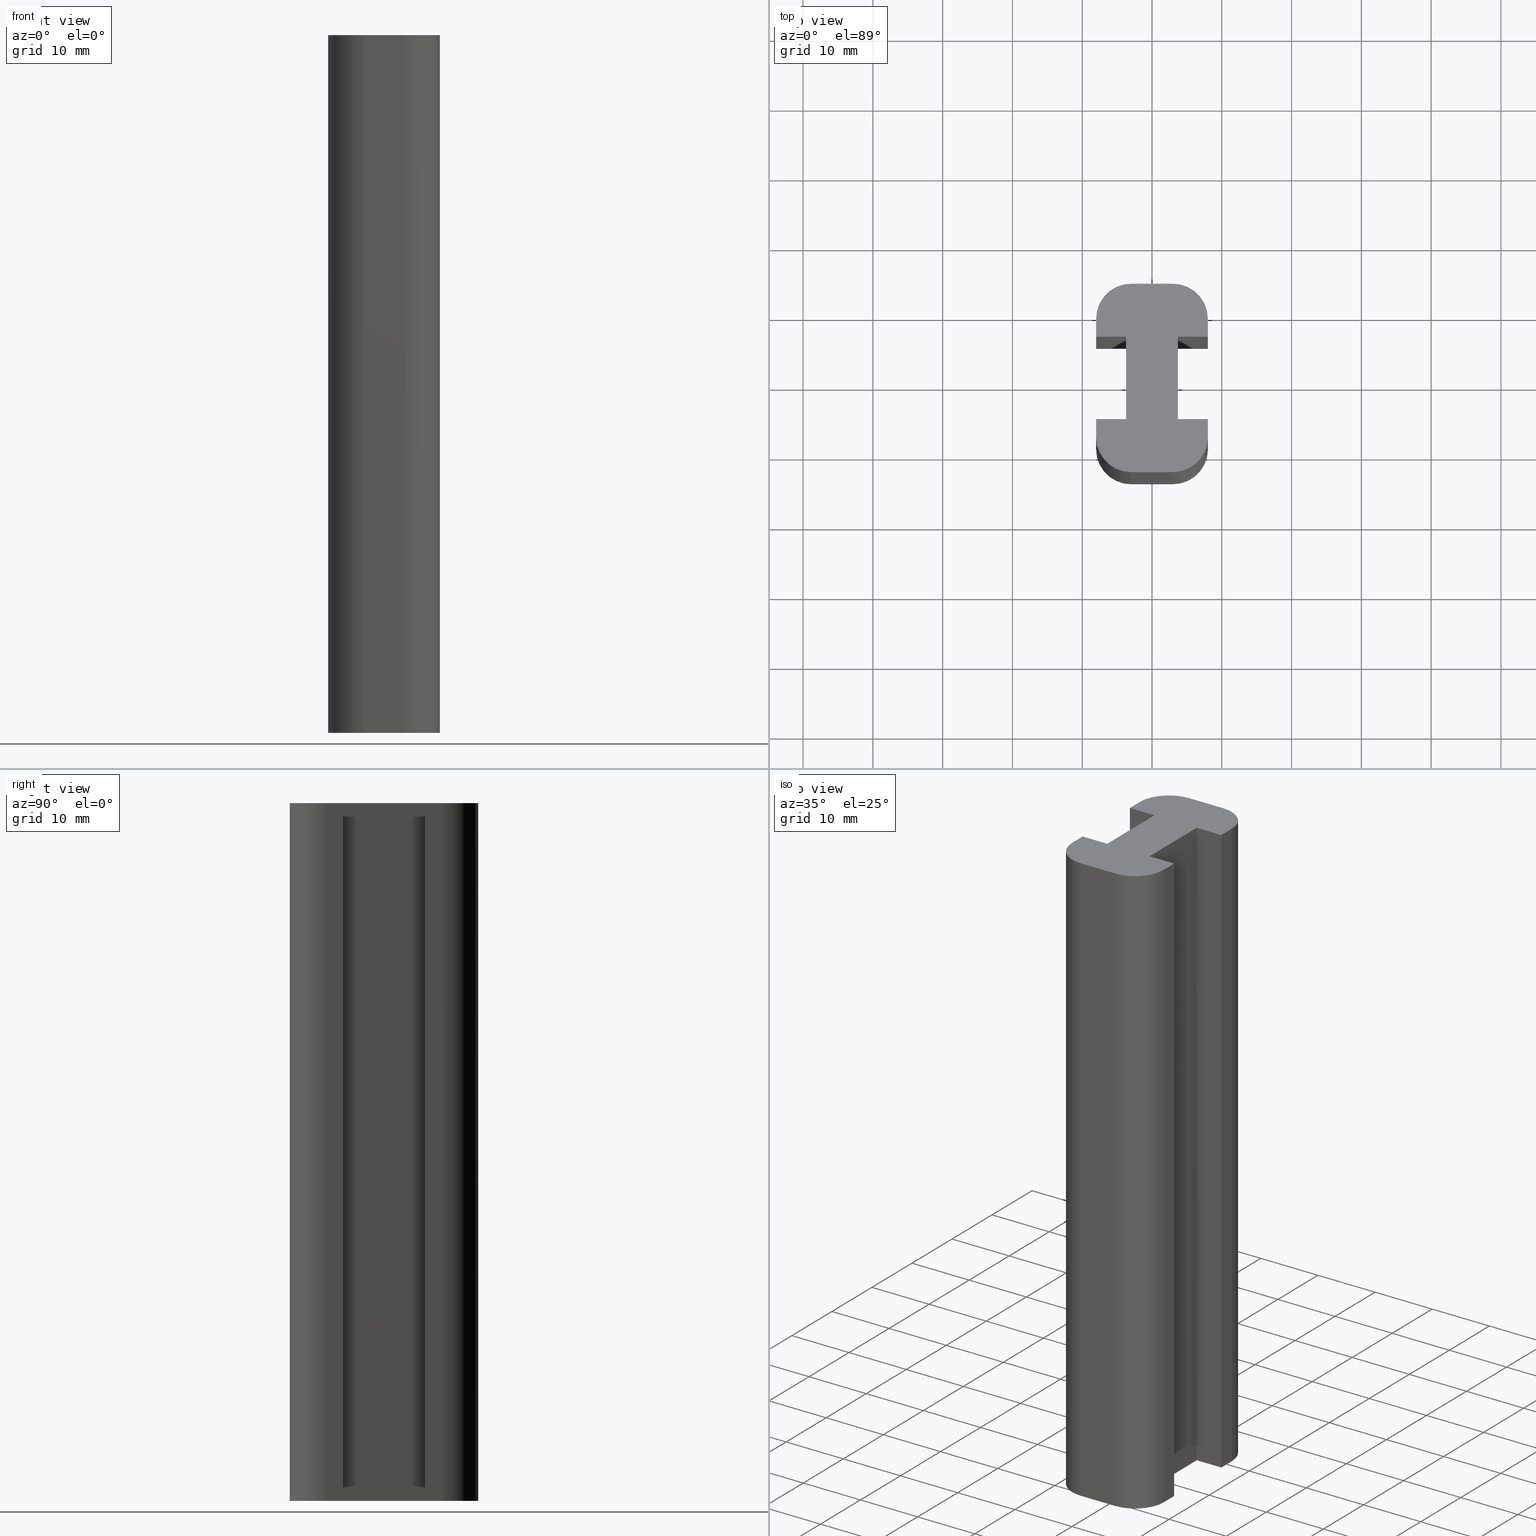
[diagram: canonical four-view strip — front | top / right | iso, engineering-drawing reading convention]
A machine part, canonical four-view strip (front | top / right | iso — engineering-drawing reading convention). The complete STEP part file that produces these views, byte-faithful:
ISO-10303-21;
HEADER;
/* Generated by software containing ST-Developer
 * from STEP Tools, Inc. (www.steptools.com) 
 */

FILE_DESCRIPTION(
/* description */ (''),
/* implementation_level */ '2;1');

FILE_NAME(
/* name */ 'Z:\\Nuovi render per accessori\\APRPZ0000017.stp',
/* time_stamp */ '2017-08-03T14:38:28+02:00',
/* author */ ('fzagni'),
/* organization */ (''),
/* preprocessor_version */ 'ST-DEVELOPER v16.1',
/* originating_system */ 'Autodesk Inventor 2016',
/* authorisation */ '');

FILE_SCHEMA (('AUTOMOTIVE_DESIGN { 1 0 10303 214 3 1 1 }'));
ENDSEC;

DATA;
#10=MECHANICAL_DESIGN_GEOMETRIC_PRESENTATION_REPRESENTATION('',(#13),#575);
#11=SHAPE_REPRESENTATION_RELATIONSHIP('SRR','None',#584,#12);
#12=ADVANCED_BREP_SHAPE_REPRESENTATION('',(#14),#574);
#13=STYLED_ITEM('',(#593),#14);
#14=MANIFOLD_SOLID_BREP('Solido1',#351);
#15=PLANE('',#356);
#16=PLANE('',#357);
#17=PLANE('',#358);
#18=PLANE('',#359);
#19=PLANE('',#360);
#20=PLANE('',#364);
#21=PLANE('',#368);
#22=PLANE('',#369);
#23=PLANE('',#370);
#24=PLANE('',#371);
#25=PLANE('',#372);
#26=PLANE('',#376);
#27=PLANE('',#377);
#28=PLANE('',#378);
#29=FACE_OUTER_BOUND('',#47,.T.);
#30=FACE_OUTER_BOUND('',#48,.T.);
#31=FACE_OUTER_BOUND('',#49,.T.);
#32=FACE_OUTER_BOUND('',#50,.T.);
#33=FACE_OUTER_BOUND('',#51,.T.);
#34=FACE_OUTER_BOUND('',#52,.T.);
#35=FACE_OUTER_BOUND('',#53,.T.);
#36=FACE_OUTER_BOUND('',#54,.T.);
#37=FACE_OUTER_BOUND('',#55,.T.);
#38=FACE_OUTER_BOUND('',#56,.T.);
#39=FACE_OUTER_BOUND('',#57,.T.);
#40=FACE_OUTER_BOUND('',#58,.T.);
#41=FACE_OUTER_BOUND('',#59,.T.);
#42=FACE_OUTER_BOUND('',#60,.T.);
#43=FACE_OUTER_BOUND('',#61,.T.);
#44=FACE_OUTER_BOUND('',#62,.T.);
#45=FACE_OUTER_BOUND('',#63,.T.);
#46=FACE_OUTER_BOUND('',#64,.T.);
#47=EDGE_LOOP('',(#233,#234,#235,#236));
#48=EDGE_LOOP('',(#237,#238,#239,#240));
#49=EDGE_LOOP('',(#241,#242,#243,#244));
#50=EDGE_LOOP('',(#245,#246,#247,#248));
#51=EDGE_LOOP('',(#249,#250,#251,#252));
#52=EDGE_LOOP('',(#253,#254,#255,#256));
#53=EDGE_LOOP('',(#257,#258,#259,#260));
#54=EDGE_LOOP('',(#261,#262,#263,#264));
#55=EDGE_LOOP('',(#265,#266,#267,#268));
#56=EDGE_LOOP('',(#269,#270,#271,#272));
#57=EDGE_LOOP('',(#273,#274,#275,#276));
#58=EDGE_LOOP('',(#277,#278,#279,#280));
#59=EDGE_LOOP('',(#281,#282,#283,#284));
#60=EDGE_LOOP('',(#285,#286,#287,#288));
#61=EDGE_LOOP('',(#289,#290,#291,#292));
#62=EDGE_LOOP('',(#293,#294,#295,#296));
#63=EDGE_LOOP('',(#297,#298,#299,#300,#301,#302,#303,#304,#305,#306,#307,
#308,#309,#310,#311,#312));
#64=EDGE_LOOP('',(#313,#314,#315,#316,#317,#318,#319,#320,#321,#322,#323,
#324,#325,#326,#327,#328));
#65=LINE('',#479,#105);
#66=LINE('',#482,#106);
#67=LINE('',#485,#107);
#68=LINE('',#487,#108);
#69=LINE('',#488,#109);
#70=LINE('',#491,#110);
#71=LINE('',#493,#111);
#72=LINE('',#494,#112);
#73=LINE('',#497,#113);
#74=LINE('',#499,#114);
#75=LINE('',#500,#115);
#76=LINE('',#503,#116);
#77=LINE('',#505,#117);
#78=LINE('',#506,#118);
#79=LINE('',#509,#119);
#80=LINE('',#511,#120);
#81=LINE('',#512,#121);
#82=LINE('',#518,#122);
#83=LINE('',#521,#123);
#84=LINE('',#523,#124);
#85=LINE('',#524,#125);
#86=LINE('',#530,#126);
#87=LINE('',#533,#127);
#88=LINE('',#535,#128);
#89=LINE('',#536,#129);
#90=LINE('',#539,#130);
#91=LINE('',#541,#131);
#92=LINE('',#542,#132);
#93=LINE('',#545,#133);
#94=LINE('',#547,#134);
#95=LINE('',#548,#135);
#96=LINE('',#551,#136);
#97=LINE('',#553,#137);
#98=LINE('',#554,#138);
#99=LINE('',#557,#139);
#100=LINE('',#559,#140);
#101=LINE('',#560,#141);
#102=LINE('',#566,#142);
#103=LINE('',#568,#143);
#104=LINE('',#569,#144);
#105=VECTOR('',#385,100.);
#106=VECTOR('',#388,100.);
#107=VECTOR('',#391,2.6);
#108=VECTOR('',#392,2.6);
#109=VECTOR('',#393,100.);
#110=VECTOR('',#396,4.3);
#111=VECTOR('',#397,4.3);
#112=VECTOR('',#398,100.);
#113=VECTOR('',#401,11.8);
#114=VECTOR('',#402,11.8);
#115=VECTOR('',#403,100.);
#116=VECTOR('',#406,4.3);
#117=VECTOR('',#407,4.3);
#118=VECTOR('',#408,100.);
#119=VECTOR('',#411,2.6);
#120=VECTOR('',#412,2.6);
#121=VECTOR('',#413,100.);
#122=VECTOR('',#420,100.);
#123=VECTOR('',#423,6.);
#124=VECTOR('',#424,6.);
#125=VECTOR('',#425,100.);
#126=VECTOR('',#432,100.);
#127=VECTOR('',#435,2.6);
#128=VECTOR('',#436,2.6);
#129=VECTOR('',#437,100.);
#130=VECTOR('',#440,4.3);
#131=VECTOR('',#441,4.3);
#132=VECTOR('',#442,100.);
#133=VECTOR('',#445,11.8);
#134=VECTOR('',#446,11.8);
#135=VECTOR('',#447,100.);
#136=VECTOR('',#450,4.3);
#137=VECTOR('',#451,4.3);
#138=VECTOR('',#452,100.);
#139=VECTOR('',#455,2.6);
#140=VECTOR('',#456,2.6);
#141=VECTOR('',#457,100.);
#142=VECTOR('',#464,100.);
#143=VECTOR('',#467,6.);
#144=VECTOR('',#468,6.);
#145=CIRCLE('',#354,5.);
#146=CIRCLE('',#355,5.);
#147=CIRCLE('',#362,5.);
#148=CIRCLE('',#363,5.);
#149=CIRCLE('',#366,5.);
#150=CIRCLE('',#367,5.);
#151=CIRCLE('',#374,5.);
#152=CIRCLE('',#375,5.);
#153=VERTEX_POINT('',#475);
#154=VERTEX_POINT('',#476);
#155=VERTEX_POINT('',#478);
#156=VERTEX_POINT('',#480);
#157=VERTEX_POINT('',#484);
#158=VERTEX_POINT('',#486);
#159=VERTEX_POINT('',#490);
#160=VERTEX_POINT('',#492);
#161=VERTEX_POINT('',#496);
#162=VERTEX_POINT('',#498);
#163=VERTEX_POINT('',#502);
#164=VERTEX_POINT('',#504);
#165=VERTEX_POINT('',#508);
#166=VERTEX_POINT('',#510);
#167=VERTEX_POINT('',#514);
#168=VERTEX_POINT('',#516);
#169=VERTEX_POINT('',#520);
#170=VERTEX_POINT('',#522);
#171=VERTEX_POINT('',#526);
#172=VERTEX_POINT('',#528);
#173=VERTEX_POINT('',#532);
#174=VERTEX_POINT('',#534);
#175=VERTEX_POINT('',#538);
#176=VERTEX_POINT('',#540);
#177=VERTEX_POINT('',#544);
#178=VERTEX_POINT('',#546);
#179=VERTEX_POINT('',#550);
#180=VERTEX_POINT('',#552);
#181=VERTEX_POINT('',#556);
#182=VERTEX_POINT('',#558);
#183=VERTEX_POINT('',#562);
#184=VERTEX_POINT('',#564);
#185=EDGE_CURVE('',#153,#154,#145,.T.);
#186=EDGE_CURVE('',#153,#155,#65,.T.);
#187=EDGE_CURVE('',#156,#155,#146,.T.);
#188=EDGE_CURVE('',#154,#156,#66,.T.);
#189=EDGE_CURVE('',#154,#157,#67,.T.);
#190=EDGE_CURVE('',#158,#156,#68,.T.);
#191=EDGE_CURVE('',#157,#158,#69,.T.);
#192=EDGE_CURVE('',#157,#159,#70,.T.);
#193=EDGE_CURVE('',#160,#158,#71,.T.);
#194=EDGE_CURVE('',#159,#160,#72,.T.);
#195=EDGE_CURVE('',#159,#161,#73,.T.);
#196=EDGE_CURVE('',#162,#160,#74,.T.);
#197=EDGE_CURVE('',#161,#162,#75,.T.);
#198=EDGE_CURVE('',#161,#163,#76,.T.);
#199=EDGE_CURVE('',#164,#162,#77,.T.);
#200=EDGE_CURVE('',#163,#164,#78,.T.);
#201=EDGE_CURVE('',#163,#165,#79,.T.);
#202=EDGE_CURVE('',#166,#164,#80,.T.);
#203=EDGE_CURVE('',#165,#166,#81,.T.);
#204=EDGE_CURVE('',#165,#167,#147,.T.);
#205=EDGE_CURVE('',#168,#166,#148,.T.);
#206=EDGE_CURVE('',#167,#168,#82,.T.);
#207=EDGE_CURVE('',#167,#169,#83,.T.);
#208=EDGE_CURVE('',#170,#168,#84,.T.);
#209=EDGE_CURVE('',#169,#170,#85,.T.);
#210=EDGE_CURVE('',#169,#171,#149,.T.);
#211=EDGE_CURVE('',#172,#170,#150,.T.);
#212=EDGE_CURVE('',#171,#172,#86,.T.);
#213=EDGE_CURVE('',#171,#173,#87,.T.);
#214=EDGE_CURVE('',#174,#172,#88,.T.);
#215=EDGE_CURVE('',#173,#174,#89,.T.);
#216=EDGE_CURVE('',#173,#175,#90,.T.);
#217=EDGE_CURVE('',#176,#174,#91,.T.);
#218=EDGE_CURVE('',#175,#176,#92,.T.);
#219=EDGE_CURVE('',#175,#177,#93,.T.);
#220=EDGE_CURVE('',#178,#176,#94,.T.);
#221=EDGE_CURVE('',#177,#178,#95,.T.);
#222=EDGE_CURVE('',#177,#179,#96,.T.);
#223=EDGE_CURVE('',#180,#178,#97,.T.);
#224=EDGE_CURVE('',#179,#180,#98,.T.);
#225=EDGE_CURVE('',#179,#181,#99,.T.);
#226=EDGE_CURVE('',#182,#180,#100,.T.);
#227=EDGE_CURVE('',#181,#182,#101,.T.);
#228=EDGE_CURVE('',#181,#183,#151,.T.);
#229=EDGE_CURVE('',#184,#182,#152,.T.);
#230=EDGE_CURVE('',#183,#184,#102,.T.);
#231=EDGE_CURVE('',#183,#153,#103,.T.);
#232=EDGE_CURVE('',#155,#184,#104,.T.);
#233=ORIENTED_EDGE('',*,*,#185,.F.);
#234=ORIENTED_EDGE('',*,*,#186,.T.);
#235=ORIENTED_EDGE('',*,*,#187,.F.);
#236=ORIENTED_EDGE('',*,*,#188,.F.);
#237=ORIENTED_EDGE('',*,*,#189,.F.);
#238=ORIENTED_EDGE('',*,*,#188,.T.);
#239=ORIENTED_EDGE('',*,*,#190,.F.);
#240=ORIENTED_EDGE('',*,*,#191,.F.);
#241=ORIENTED_EDGE('',*,*,#192,.F.);
#242=ORIENTED_EDGE('',*,*,#191,.T.);
#243=ORIENTED_EDGE('',*,*,#193,.F.);
#244=ORIENTED_EDGE('',*,*,#194,.F.);
#245=ORIENTED_EDGE('',*,*,#195,.F.);
#246=ORIENTED_EDGE('',*,*,#194,.T.);
#247=ORIENTED_EDGE('',*,*,#196,.F.);
#248=ORIENTED_EDGE('',*,*,#197,.F.);
#249=ORIENTED_EDGE('',*,*,#198,.F.);
#250=ORIENTED_EDGE('',*,*,#197,.T.);
#251=ORIENTED_EDGE('',*,*,#199,.F.);
#252=ORIENTED_EDGE('',*,*,#200,.F.);
#253=ORIENTED_EDGE('',*,*,#201,.F.);
#254=ORIENTED_EDGE('',*,*,#200,.T.);
#255=ORIENTED_EDGE('',*,*,#202,.F.);
#256=ORIENTED_EDGE('',*,*,#203,.F.);
#257=ORIENTED_EDGE('',*,*,#204,.F.);
#258=ORIENTED_EDGE('',*,*,#203,.T.);
#259=ORIENTED_EDGE('',*,*,#205,.F.);
#260=ORIENTED_EDGE('',*,*,#206,.F.);
#261=ORIENTED_EDGE('',*,*,#207,.F.);
#262=ORIENTED_EDGE('',*,*,#206,.T.);
#263=ORIENTED_EDGE('',*,*,#208,.F.);
#264=ORIENTED_EDGE('',*,*,#209,.F.);
#265=ORIENTED_EDGE('',*,*,#210,.F.);
#266=ORIENTED_EDGE('',*,*,#209,.T.);
#267=ORIENTED_EDGE('',*,*,#211,.F.);
#268=ORIENTED_EDGE('',*,*,#212,.F.);
#269=ORIENTED_EDGE('',*,*,#213,.F.);
#270=ORIENTED_EDGE('',*,*,#212,.T.);
#271=ORIENTED_EDGE('',*,*,#214,.F.);
#272=ORIENTED_EDGE('',*,*,#215,.F.);
#273=ORIENTED_EDGE('',*,*,#216,.F.);
#274=ORIENTED_EDGE('',*,*,#215,.T.);
#275=ORIENTED_EDGE('',*,*,#217,.F.);
#276=ORIENTED_EDGE('',*,*,#218,.F.);
#277=ORIENTED_EDGE('',*,*,#219,.F.);
#278=ORIENTED_EDGE('',*,*,#218,.T.);
#279=ORIENTED_EDGE('',*,*,#220,.F.);
#280=ORIENTED_EDGE('',*,*,#221,.F.);
#281=ORIENTED_EDGE('',*,*,#222,.F.);
#282=ORIENTED_EDGE('',*,*,#221,.T.);
#283=ORIENTED_EDGE('',*,*,#223,.F.);
#284=ORIENTED_EDGE('',*,*,#224,.F.);
#285=ORIENTED_EDGE('',*,*,#225,.F.);
#286=ORIENTED_EDGE('',*,*,#224,.T.);
#287=ORIENTED_EDGE('',*,*,#226,.F.);
#288=ORIENTED_EDGE('',*,*,#227,.F.);
#289=ORIENTED_EDGE('',*,*,#228,.F.);
#290=ORIENTED_EDGE('',*,*,#227,.T.);
#291=ORIENTED_EDGE('',*,*,#229,.F.);
#292=ORIENTED_EDGE('',*,*,#230,.F.);
#293=ORIENTED_EDGE('',*,*,#231,.F.);
#294=ORIENTED_EDGE('',*,*,#230,.T.);
#295=ORIENTED_EDGE('',*,*,#232,.F.);
#296=ORIENTED_EDGE('',*,*,#186,.F.);
#297=ORIENTED_EDGE('',*,*,#231,.T.);
#298=ORIENTED_EDGE('',*,*,#185,.T.);
#299=ORIENTED_EDGE('',*,*,#189,.T.);
#300=ORIENTED_EDGE('',*,*,#192,.T.);
#301=ORIENTED_EDGE('',*,*,#195,.T.);
#302=ORIENTED_EDGE('',*,*,#198,.T.);
#303=ORIENTED_EDGE('',*,*,#201,.T.);
#304=ORIENTED_EDGE('',*,*,#204,.T.);
#305=ORIENTED_EDGE('',*,*,#207,.T.);
#306=ORIENTED_EDGE('',*,*,#210,.T.);
#307=ORIENTED_EDGE('',*,*,#213,.T.);
#308=ORIENTED_EDGE('',*,*,#216,.T.);
#309=ORIENTED_EDGE('',*,*,#219,.T.);
#310=ORIENTED_EDGE('',*,*,#222,.T.);
#311=ORIENTED_EDGE('',*,*,#225,.T.);
#312=ORIENTED_EDGE('',*,*,#228,.T.);
#313=ORIENTED_EDGE('',*,*,#232,.T.);
#314=ORIENTED_EDGE('',*,*,#229,.T.);
#315=ORIENTED_EDGE('',*,*,#226,.T.);
#316=ORIENTED_EDGE('',*,*,#223,.T.);
#317=ORIENTED_EDGE('',*,*,#220,.T.);
#318=ORIENTED_EDGE('',*,*,#217,.T.);
#319=ORIENTED_EDGE('',*,*,#214,.T.);
#320=ORIENTED_EDGE('',*,*,#211,.T.);
#321=ORIENTED_EDGE('',*,*,#208,.T.);
#322=ORIENTED_EDGE('',*,*,#205,.T.);
#323=ORIENTED_EDGE('',*,*,#202,.T.);
#324=ORIENTED_EDGE('',*,*,#199,.T.);
#325=ORIENTED_EDGE('',*,*,#196,.T.);
#326=ORIENTED_EDGE('',*,*,#193,.T.);
#327=ORIENTED_EDGE('',*,*,#190,.T.);
#328=ORIENTED_EDGE('',*,*,#187,.T.);
#329=CYLINDRICAL_SURFACE('',#353,5.);
#330=CYLINDRICAL_SURFACE('',#361,5.);
#331=CYLINDRICAL_SURFACE('',#365,5.);
#332=CYLINDRICAL_SURFACE('',#373,5.);
#333=ADVANCED_FACE('',(#29),#329,.T.);
#334=ADVANCED_FACE('',(#30),#15,.T.);
#335=ADVANCED_FACE('',(#31),#16,.T.);
#336=ADVANCED_FACE('',(#32),#17,.T.);
#337=ADVANCED_FACE('',(#33),#18,.T.);
#338=ADVANCED_FACE('',(#34),#19,.T.);
#339=ADVANCED_FACE('',(#35),#330,.T.);
#340=ADVANCED_FACE('',(#36),#20,.T.);
#341=ADVANCED_FACE('',(#37),#331,.T.);
#342=ADVANCED_FACE('',(#38),#21,.T.);
#343=ADVANCED_FACE('',(#39),#22,.T.);
#344=ADVANCED_FACE('',(#40),#23,.T.);
#345=ADVANCED_FACE('',(#41),#24,.T.);
#346=ADVANCED_FACE('',(#42),#25,.T.);
#347=ADVANCED_FACE('',(#43),#332,.T.);
#348=ADVANCED_FACE('',(#44),#26,.T.);
#349=ADVANCED_FACE('',(#45),#27,.F.);
#350=ADVANCED_FACE('',(#46),#28,.T.);
#351=CLOSED_SHELL('',(#333,#334,#335,#336,#337,#338,#339,#340,#341,#342,
#343,#344,#345,#346,#347,#348,#349,#350));
#352=AXIS2_PLACEMENT_3D('placement',#473,#379,#380);
#353=AXIS2_PLACEMENT_3D('',#474,#381,#382);
#354=AXIS2_PLACEMENT_3D('',#477,#383,#384);
#355=AXIS2_PLACEMENT_3D('',#481,#386,#387);
#356=AXIS2_PLACEMENT_3D('',#483,#389,#390);
#357=AXIS2_PLACEMENT_3D('',#489,#394,#395);
#358=AXIS2_PLACEMENT_3D('',#495,#399,#400);
#359=AXIS2_PLACEMENT_3D('',#501,#404,#405);
#360=AXIS2_PLACEMENT_3D('',#507,#409,#410);
#361=AXIS2_PLACEMENT_3D('',#513,#414,#415);
#362=AXIS2_PLACEMENT_3D('',#515,#416,#417);
#363=AXIS2_PLACEMENT_3D('',#517,#418,#419);
#364=AXIS2_PLACEMENT_3D('',#519,#421,#422);
#365=AXIS2_PLACEMENT_3D('',#525,#426,#427);
#366=AXIS2_PLACEMENT_3D('',#527,#428,#429);
#367=AXIS2_PLACEMENT_3D('',#529,#430,#431);
#368=AXIS2_PLACEMENT_3D('',#531,#433,#434);
#369=AXIS2_PLACEMENT_3D('',#537,#438,#439);
#370=AXIS2_PLACEMENT_3D('',#543,#443,#444);
#371=AXIS2_PLACEMENT_3D('',#549,#448,#449);
#372=AXIS2_PLACEMENT_3D('',#555,#453,#454);
#373=AXIS2_PLACEMENT_3D('',#561,#458,#459);
#374=AXIS2_PLACEMENT_3D('',#563,#460,#461);
#375=AXIS2_PLACEMENT_3D('',#565,#462,#463);
#376=AXIS2_PLACEMENT_3D('',#567,#465,#466);
#377=AXIS2_PLACEMENT_3D('',#570,#469,#470);
#378=AXIS2_PLACEMENT_3D('',#571,#471,#472);
#379=DIRECTION('axis',(0.,0.,1.));
#380=DIRECTION('refdir',(1.,0.,0.));
#381=DIRECTION('center_axis',(0.,0.,1.));
#382=DIRECTION('ref_axis',(-1.,0.,0.));
#383=DIRECTION('center_axis',(0.,0.,-1.));
#384=DIRECTION('ref_axis',(-1.,0.,0.));
#385=DIRECTION('',(0.,0.,1.));
#386=DIRECTION('center_axis',(0.,0.,1.));
#387=DIRECTION('ref_axis',(-1.,0.,0.));
#388=DIRECTION('',(0.,0.,1.));
#389=DIRECTION('center_axis',(1.,0.,0.));
#390=DIRECTION('ref_axis',(0.,1.,0.));
#391=DIRECTION('',(0.,-1.,0.));
#392=DIRECTION('',(0.,1.,0.));
#393=DIRECTION('',(0.,0.,1.));
#394=DIRECTION('center_axis',(0.,-1.,0.));
#395=DIRECTION('ref_axis',(1.,0.,0.));
#396=DIRECTION('',(-1.,0.,0.));
#397=DIRECTION('',(1.,0.,0.));
#398=DIRECTION('',(0.,0.,1.));
#399=DIRECTION('center_axis',(1.,0.,0.));
#400=DIRECTION('ref_axis',(0.,1.,0.));
#401=DIRECTION('',(0.,-1.,0.));
#402=DIRECTION('',(0.,1.,0.));
#403=DIRECTION('',(0.,0.,1.));
#404=DIRECTION('center_axis',(0.,1.,0.));
#405=DIRECTION('ref_axis',(-1.,0.,0.));
#406=DIRECTION('',(1.,0.,0.));
#407=DIRECTION('',(-1.,0.,0.));
#408=DIRECTION('',(0.,0.,1.));
#409=DIRECTION('center_axis',(1.,0.,0.));
#410=DIRECTION('ref_axis',(0.,1.,0.));
#411=DIRECTION('',(0.,-1.,0.));
#412=DIRECTION('',(0.,1.,0.));
#413=DIRECTION('',(0.,0.,1.));
#414=DIRECTION('center_axis',(0.,0.,1.));
#415=DIRECTION('ref_axis',(0.,1.,0.));
#416=DIRECTION('center_axis',(0.,0.,-1.));
#417=DIRECTION('ref_axis',(0.,1.,0.));
#418=DIRECTION('center_axis',(0.,0.,1.));
#419=DIRECTION('ref_axis',(0.,1.,0.));
#420=DIRECTION('',(0.,0.,1.));
#421=DIRECTION('center_axis',(0.,-1.,0.));
#422=DIRECTION('ref_axis',(1.,0.,0.));
#423=DIRECTION('',(-1.,0.,0.));
#424=DIRECTION('',(1.,0.,0.));
#425=DIRECTION('',(0.,0.,1.));
#426=DIRECTION('center_axis',(0.,0.,1.));
#427=DIRECTION('ref_axis',(1.,0.,0.));
#428=DIRECTION('center_axis',(0.,0.,-1.));
#429=DIRECTION('ref_axis',(1.,0.,0.));
#430=DIRECTION('center_axis',(0.,0.,1.));
#431=DIRECTION('ref_axis',(1.,0.,0.));
#432=DIRECTION('',(0.,0.,1.));
#433=DIRECTION('center_axis',(-1.,0.,0.));
#434=DIRECTION('ref_axis',(0.,-1.,0.));
#435=DIRECTION('',(0.,1.,0.));
#436=DIRECTION('',(0.,-1.,0.));
#437=DIRECTION('',(0.,0.,1.));
#438=DIRECTION('center_axis',(0.,1.,0.));
#439=DIRECTION('ref_axis',(-1.,0.,0.));
#440=DIRECTION('',(1.,0.,0.));
#441=DIRECTION('',(-1.,0.,0.));
#442=DIRECTION('',(0.,0.,1.));
#443=DIRECTION('center_axis',(-1.,0.,0.));
#444=DIRECTION('ref_axis',(0.,-1.,0.));
#445=DIRECTION('',(0.,1.,0.));
#446=DIRECTION('',(0.,-1.,0.));
#447=DIRECTION('',(0.,0.,1.));
#448=DIRECTION('center_axis',(0.,-1.,0.));
#449=DIRECTION('ref_axis',(1.,0.,0.));
#450=DIRECTION('',(-1.,0.,0.));
#451=DIRECTION('',(1.,0.,0.));
#452=DIRECTION('',(0.,0.,1.));
#453=DIRECTION('center_axis',(-1.,0.,0.));
#454=DIRECTION('ref_axis',(0.,-1.,0.));
#455=DIRECTION('',(0.,1.,0.));
#456=DIRECTION('',(0.,-1.,0.));
#457=DIRECTION('',(0.,0.,1.));
#458=DIRECTION('center_axis',(0.,0.,1.));
#459=DIRECTION('ref_axis',(0.,-1.,0.));
#460=DIRECTION('center_axis',(0.,0.,-1.));
#461=DIRECTION('ref_axis',(0.,-1.,0.));
#462=DIRECTION('center_axis',(0.,0.,1.));
#463=DIRECTION('ref_axis',(0.,-1.,0.));
#464=DIRECTION('',(0.,0.,1.));
#465=DIRECTION('center_axis',(0.,1.,0.));
#466=DIRECTION('ref_axis',(-1.,0.,0.));
#467=DIRECTION('',(1.,0.,0.));
#468=DIRECTION('',(-1.,0.,0.));
#469=DIRECTION('center_axis',(0.,0.,1.));
#470=DIRECTION('ref_axis',(1.,0.,0.));
#471=DIRECTION('center_axis',(0.,0.,1.));
#472=DIRECTION('ref_axis',(1.,0.,0.));
#473=CARTESIAN_POINT('',(0.,0.,0.));
#474=CARTESIAN_POINT('Origin',(3.,8.5,0.));
#475=CARTESIAN_POINT('',(3.,13.5,0.));
#476=CARTESIAN_POINT('',(8.,8.5,0.));
#477=CARTESIAN_POINT('Origin',(3.,8.5,0.));
#478=CARTESIAN_POINT('',(3.,13.5,100.));
#479=CARTESIAN_POINT('',(3.,13.5,0.));
#480=CARTESIAN_POINT('',(8.,8.5,100.));
#481=CARTESIAN_POINT('Origin',(3.,8.5,100.));
#482=CARTESIAN_POINT('',(8.,8.5,0.));
#483=CARTESIAN_POINT('Origin',(8.,5.9,0.));
#484=CARTESIAN_POINT('',(8.,5.9,0.));
#485=CARTESIAN_POINT('',(8.,8.5,0.));
#486=CARTESIAN_POINT('',(8.,5.9,100.));
#487=CARTESIAN_POINT('',(8.,8.5,100.));
#488=CARTESIAN_POINT('',(8.,5.9,0.));
#489=CARTESIAN_POINT('Origin',(3.7,5.9,0.));
#490=CARTESIAN_POINT('',(3.7,5.9,0.));
#491=CARTESIAN_POINT('',(8.,5.9,0.));
#492=CARTESIAN_POINT('',(3.7,5.9,100.));
#493=CARTESIAN_POINT('',(8.,5.9,100.));
#494=CARTESIAN_POINT('',(3.7,5.9,0.));
#495=CARTESIAN_POINT('Origin',(3.7,-5.9,0.));
#496=CARTESIAN_POINT('',(3.7,-5.9,0.));
#497=CARTESIAN_POINT('',(3.7,5.9,0.));
#498=CARTESIAN_POINT('',(3.7,-5.9,100.));
#499=CARTESIAN_POINT('',(3.7,5.9,100.));
#500=CARTESIAN_POINT('',(3.7,-5.9,0.));
#501=CARTESIAN_POINT('Origin',(8.,-5.9,0.));
#502=CARTESIAN_POINT('',(8.,-5.9,0.));
#503=CARTESIAN_POINT('',(3.7,-5.9,0.));
#504=CARTESIAN_POINT('',(8.,-5.9,100.));
#505=CARTESIAN_POINT('',(3.7,-5.9,100.));
#506=CARTESIAN_POINT('',(8.,-5.9,0.));
#507=CARTESIAN_POINT('Origin',(8.,-8.5,0.));
#508=CARTESIAN_POINT('',(8.,-8.5,0.));
#509=CARTESIAN_POINT('',(8.,-5.9,0.));
#510=CARTESIAN_POINT('',(8.,-8.5,100.));
#511=CARTESIAN_POINT('',(8.,-5.9,100.));
#512=CARTESIAN_POINT('',(8.,-8.5,0.));
#513=CARTESIAN_POINT('Origin',(3.,-8.5,0.));
#514=CARTESIAN_POINT('',(3.,-13.5,0.));
#515=CARTESIAN_POINT('Origin',(3.,-8.5,0.));
#516=CARTESIAN_POINT('',(3.,-13.5,100.));
#517=CARTESIAN_POINT('Origin',(3.,-8.5,100.));
#518=CARTESIAN_POINT('',(3.,-13.5,0.));
#519=CARTESIAN_POINT('Origin',(-3.,-13.5,0.));
#520=CARTESIAN_POINT('',(-3.,-13.5,0.));
#521=CARTESIAN_POINT('',(3.,-13.5,0.));
#522=CARTESIAN_POINT('',(-3.,-13.5,100.));
#523=CARTESIAN_POINT('',(3.,-13.5,100.));
#524=CARTESIAN_POINT('',(-3.,-13.5,0.));
#525=CARTESIAN_POINT('Origin',(-3.,-8.5,0.));
#526=CARTESIAN_POINT('',(-8.,-8.5,0.));
#527=CARTESIAN_POINT('Origin',(-3.,-8.5,0.));
#528=CARTESIAN_POINT('',(-8.,-8.5,100.));
#529=CARTESIAN_POINT('Origin',(-3.,-8.5,100.));
#530=CARTESIAN_POINT('',(-8.,-8.5,0.));
#531=CARTESIAN_POINT('Origin',(-8.,-5.9,0.));
#532=CARTESIAN_POINT('',(-8.,-5.9,0.));
#533=CARTESIAN_POINT('',(-8.,-8.5,0.));
#534=CARTESIAN_POINT('',(-8.,-5.9,100.));
#535=CARTESIAN_POINT('',(-8.,-8.5,100.));
#536=CARTESIAN_POINT('',(-8.,-5.9,0.));
#537=CARTESIAN_POINT('Origin',(-3.7,-5.9,0.));
#538=CARTESIAN_POINT('',(-3.7,-5.9,0.));
#539=CARTESIAN_POINT('',(-8.,-5.9,0.));
#540=CARTESIAN_POINT('',(-3.7,-5.9,100.));
#541=CARTESIAN_POINT('',(-8.,-5.9,100.));
#542=CARTESIAN_POINT('',(-3.7,-5.9,0.));
#543=CARTESIAN_POINT('Origin',(-3.7,5.9,0.));
#544=CARTESIAN_POINT('',(-3.7,5.9,0.));
#545=CARTESIAN_POINT('',(-3.7,-5.9,0.));
#546=CARTESIAN_POINT('',(-3.7,5.9,100.));
#547=CARTESIAN_POINT('',(-3.7,-5.9,100.));
#548=CARTESIAN_POINT('',(-3.7,5.9,0.));
#549=CARTESIAN_POINT('Origin',(-8.,5.9,0.));
#550=CARTESIAN_POINT('',(-8.,5.9,0.));
#551=CARTESIAN_POINT('',(-3.7,5.9,0.));
#552=CARTESIAN_POINT('',(-8.,5.9,100.));
#553=CARTESIAN_POINT('',(-3.7,5.9,100.));
#554=CARTESIAN_POINT('',(-8.,5.9,0.));
#555=CARTESIAN_POINT('Origin',(-8.,8.5,0.));
#556=CARTESIAN_POINT('',(-8.,8.5,0.));
#557=CARTESIAN_POINT('',(-8.,5.9,0.));
#558=CARTESIAN_POINT('',(-8.,8.5,100.));
#559=CARTESIAN_POINT('',(-8.,5.9,100.));
#560=CARTESIAN_POINT('',(-8.,8.5,0.));
#561=CARTESIAN_POINT('Origin',(-3.,8.5,0.));
#562=CARTESIAN_POINT('',(-3.,13.5,0.));
#563=CARTESIAN_POINT('Origin',(-3.,8.5,0.));
#564=CARTESIAN_POINT('',(-3.,13.5,100.));
#565=CARTESIAN_POINT('Origin',(-3.,8.5,100.));
#566=CARTESIAN_POINT('',(-3.,13.5,0.));
#567=CARTESIAN_POINT('Origin',(3.,13.5,0.));
#568=CARTESIAN_POINT('',(-3.,13.5,0.));
#569=CARTESIAN_POINT('',(-3.,13.5,100.));
#570=CARTESIAN_POINT('Origin',(9.59714848958403E-17,9.59714848958403E-17,
0.));
#571=CARTESIAN_POINT('Origin',(9.59714848958403E-17,9.59714848958403E-17,
100.));
#572=UNCERTAINTY_MEASURE_WITH_UNIT(LENGTH_MEASURE(0.01),#576,
'DISTANCE_ACCURACY_VALUE',
'Maximum model space distance between geometric entities at asserted c
onnectivities');
#573=UNCERTAINTY_MEASURE_WITH_UNIT(LENGTH_MEASURE(1.E-6),#576,
'DISTANCE_ACCURACY_VALUE',
'Maximum model space distance between geometric entities at asserted c
onnectivities');
#574=(
GEOMETRIC_REPRESENTATION_CONTEXT(3)
GLOBAL_UNCERTAINTY_ASSIGNED_CONTEXT((#572))
GLOBAL_UNIT_ASSIGNED_CONTEXT((#576,#579,#577))
REPRESENTATION_CONTEXT('','3D')
);
#575=(
GEOMETRIC_REPRESENTATION_CONTEXT(3)
GLOBAL_UNCERTAINTY_ASSIGNED_CONTEXT((#573))
GLOBAL_UNIT_ASSIGNED_CONTEXT((#576,#579,#577))
REPRESENTATION_CONTEXT('','3D')
);
#576=(
LENGTH_UNIT()
NAMED_UNIT(*)
SI_UNIT(.MILLI.,.METRE.)
);
#577=(
NAMED_UNIT(*)
SI_UNIT($,.STERADIAN.)
SOLID_ANGLE_UNIT()
);
#578=DIMENSIONAL_EXPONENTS(0.,0.,0.,0.,0.,0.,0.);
#579=(
CONVERSION_BASED_UNIT('degree',#581)
NAMED_UNIT(#578)
PLANE_ANGLE_UNIT()
);
#580=(
NAMED_UNIT(*)
PLANE_ANGLE_UNIT()
SI_UNIT($,.RADIAN.)
);
#581=PLANE_ANGLE_MEASURE_WITH_UNIT(PLANE_ANGLE_MEASURE(0.01745329252),#580);
#582=SHAPE_DEFINITION_REPRESENTATION(#583,#584);
#583=PRODUCT_DEFINITION_SHAPE('',$,#586);
#584=SHAPE_REPRESENTATION('',(#352),#574);
#585=PRODUCT_DEFINITION_CONTEXT('part definition',#590,'design');
#586=PRODUCT_DEFINITION('APRPZ0000017','APRPZ0000017',#587,#585);
#587=PRODUCT_DEFINITION_FORMATION('','A',#592);
#588=PRODUCT_RELATED_PRODUCT_CATEGORY('APRPZ0000017','APRPZ0000017',(#592));
#589=APPLICATION_PROTOCOL_DEFINITION('international standard',
'automotive_design',2009,#590);
#590=APPLICATION_CONTEXT(
'Core Data for Automotive Mechanical Design Process');
#591=PRODUCT_CONTEXT('part definition',#590,'mechanical');
#592=PRODUCT('APRPZ0000017','APRPZ0000017',$,(#591));
#593=PRESENTATION_STYLE_ASSIGNMENT((#594));
#594=SURFACE_STYLE_USAGE(.BOTH.,#595);
#595=SURFACE_SIDE_STYLE('',(#596));
#596=SURFACE_STYLE_FILL_AREA(#597);
#597=FILL_AREA_STYLE('',(#598));
#598=FILL_AREA_STYLE_COLOUR('',#599);
#599=COLOUR_RGB('',0.105882352941176,0.105882352941176,0.105882352941176);
ENDSEC;
END-ISO-10303-21;
